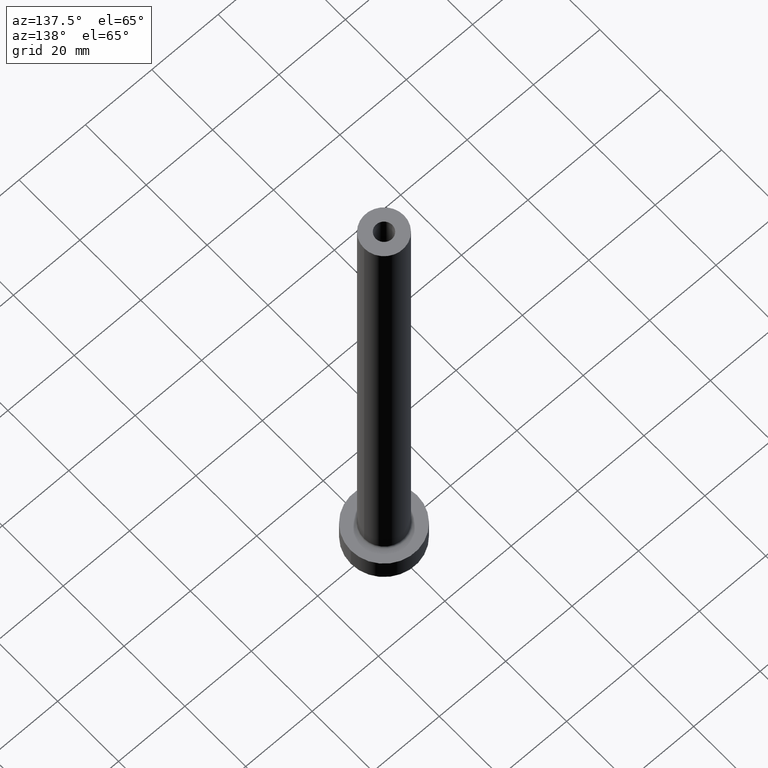
[diagram: clean part render]
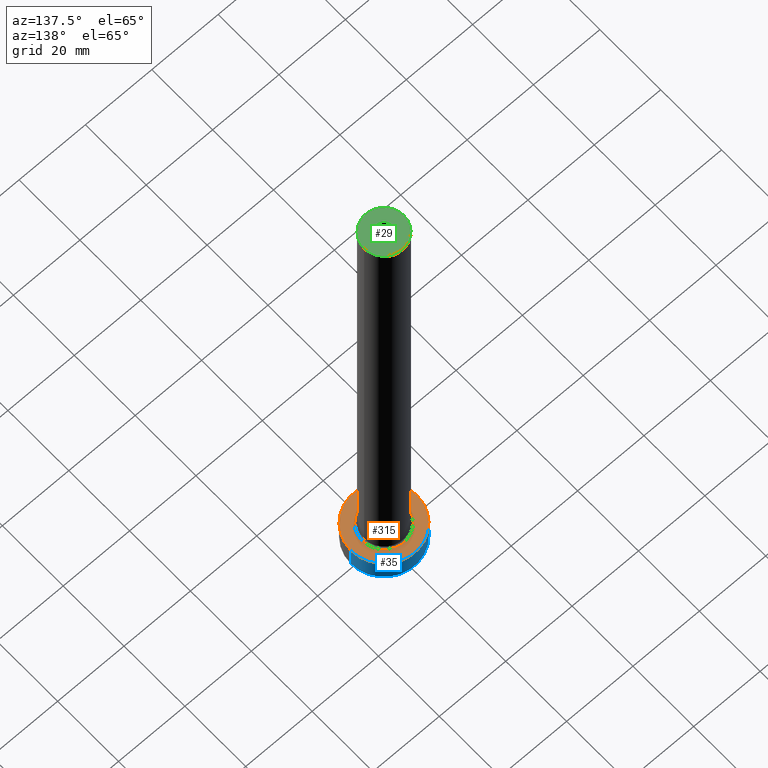
[diagram: same view with three faces highlighted in distinct colors, each labeled with its STEP entity id]
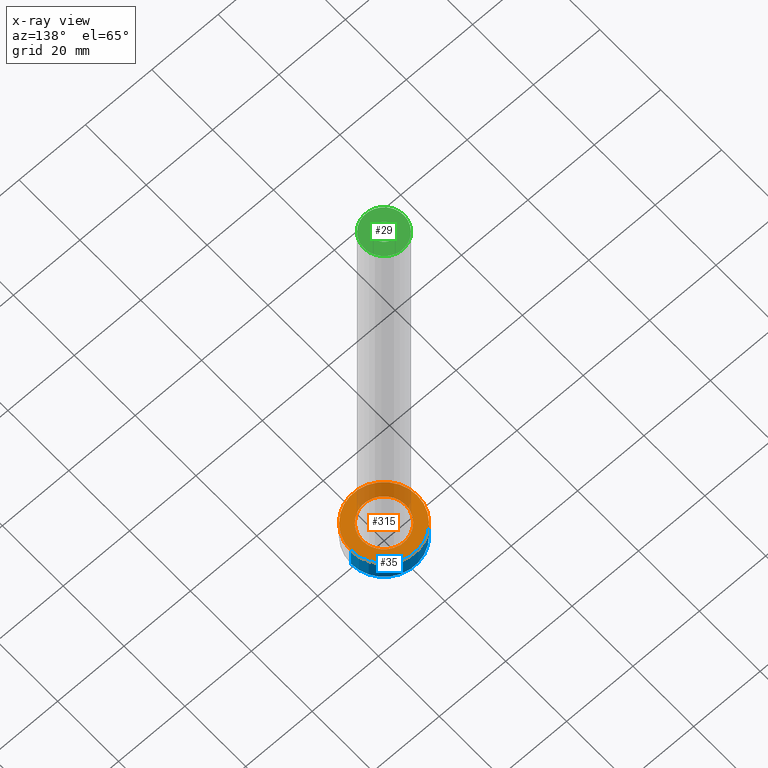
[diagram: x-ray of the same camera — body ghosted, the three highlighted faces saturated]
A machine part, auxiliary view with three faces highlighted in distinct colors.
The next image is the same camera in x-ray (body ghosted, the three faces saturated) — at least one of them is partly hidden behind the body in this view.
Their STEP definitions:

[orange] entity #315 — the highlighted planar face has unit normal (0, 0, 1).
#17 = DIRECTION ( 'NONE',  ( 0.000000000000000000, 0.000000000000000000, 1.000000000000000000 ) ) ;
#24 = EDGE_LOOP ( 'NONE', ( #304, #33 ) ) ;
#33 = ORIENTED_EDGE ( 'NONE', *, *, #111, .T. ) ;
#46 = CIRCLE ( 'NONE', #449, 6.500000000000000888 ) ;
#53 = CIRCLE ( 'NONE', #323, 10.00000000000000000 ) ;
#86 = VERTEX_POINT ( 'NONE', #276 ) ;
#91 = CARTESIAN_POINT ( 'NONE',  ( 0.000000000000000000, 0.000000000000000000, 7.000000000000000000 ) ) ;
#92 = ORIENTED_EDGE ( 'NONE', *, *, #221, .T. ) ;
#111 = EDGE_CURVE ( 'NONE', #194, #86, #359, .T. ) ;
#112 = FACE_OUTER_BOUND ( 'NONE', #408, .T. ) ;
#130 = CARTESIAN_POINT ( 'NONE',  ( 0.000000000000000000, 0.000000000000000000, 7.000000000000000000 ) ) ;
#179 = AXIS2_PLACEMENT_3D ( 'NONE', #195, #343, #451 ) ;
#194 = VERTEX_POINT ( 'NONE', #260 ) ;
#195 = CARTESIAN_POINT ( 'NONE',  ( 0.000000000000000000, 0.000000000000000000, 7.000000000000000000 ) ) ;
#217 = DIRECTION ( 'NONE',  ( 1.000000000000000000, 0.000000000000000000, 0.000000000000000000 ) ) ;
#221 = EDGE_CURVE ( 'NONE', #423, #441, #53, .T. ) ;
#230 = DIRECTION ( 'NONE',  ( 1.000000000000000000, 0.000000000000000000, 0.000000000000000000 ) ) ;
#252 = PLANE ( 'NONE',  #409 ) ;
#260 = CARTESIAN_POINT ( 'NONE',  ( -6.500000000000000888, 7.960204194457796463E-16, 7.000000000000002665 ) ) ;
#275 = DIRECTION ( 'NONE',  ( -0.000000000000000000, -0.000000000000000000, -1.000000000000000000 ) ) ;
#276 = CARTESIAN_POINT ( 'NONE',  ( 6.500000000000000888, 0.000000000000000000, 7.000000000000002665 ) ) ;
#279 = DIRECTION ( 'NONE',  ( -0.000000000000000000, -0.000000000000000000, -1.000000000000000000 ) ) ;
#284 = AXIS2_PLACEMENT_3D ( 'NONE', #416, #279, #379 ) ;
#297 = CARTESIAN_POINT ( 'NONE',  ( 0.000000000000000000, 0.000000000000000000, 7.000000000000000000 ) ) ;
#304 = ORIENTED_EDGE ( 'NONE', *, *, #358, .T. ) ;
#315 = ADVANCED_FACE ( 'NONE', ( #433, #112 ), #252, .T. ) ;
#323 = AXIS2_PLACEMENT_3D ( 'NONE', #297, #440, #217 ) ;
#337 = ORIENTED_EDGE ( 'NONE', *, *, #401, .T. ) ;
#343 = DIRECTION ( 'NONE',  ( 0.000000000000000000, 0.000000000000000000, 1.000000000000000000 ) ) ;
#358 = EDGE_CURVE ( 'NONE', #86, #194, #46, .T. ) ;
#359 = CIRCLE ( 'NONE', #284, 6.500000000000000888 ) ;
#370 = DIRECTION ( 'NONE',  ( 1.000000000000000000, 0.000000000000000000, -0.000000000000000000 ) ) ;
#378 = CARTESIAN_POINT ( 'NONE',  ( 10.00000000000000000, 1.224646799147353256E-15, 7.000000000000000000 ) ) ;
#379 = DIRECTION ( 'NONE',  ( 1.000000000000000000, 0.000000000000000000, 0.000000000000000000 ) ) ;
#387 = CIRCLE ( 'NONE', #179, 10.00000000000000000 ) ;
#401 = EDGE_CURVE ( 'NONE', #441, #423, #387, .T. ) ;
#408 = EDGE_LOOP ( 'NONE', ( #337, #92 ) ) ;
#409 = AXIS2_PLACEMENT_3D ( 'NONE', #130, #17, #370 ) ;
#412 = CARTESIAN_POINT ( 'NONE',  ( -10.00000000000000000, 0.000000000000000000, 7.000000000000000000 ) ) ;
#416 = CARTESIAN_POINT ( 'NONE',  ( 0.000000000000000000, 0.000000000000000000, 7.000000000000000000 ) ) ;
#423 = VERTEX_POINT ( 'NONE', #378 ) ;
#433 = FACE_BOUND ( 'NONE', #24, .T. ) ;
#440 = DIRECTION ( 'NONE',  ( 0.000000000000000000, 0.000000000000000000, 1.000000000000000000 ) ) ;
#441 = VERTEX_POINT ( 'NONE', #412 ) ;
#449 = AXIS2_PLACEMENT_3D ( 'NONE', #91, #275, #230 ) ;
#451 = DIRECTION ( 'NONE',  ( 1.000000000000000000, 0.000000000000000000, 0.000000000000000000 ) ) ;

[blue] entity #35 — the highlighted cylindrical surface (partial cylindrical patch) has radius 10 mm, axis along (-0, -0, -1).
#7 = DIRECTION ( 'NONE',  ( -0.000000000000000000, -0.000000000000000000, -1.000000000000000000 ) ) ;
#15 = VECTOR ( 'NONE', #71, 1000.000000000000000 ) ;
#35 = ADVANCED_FACE ( 'NONE', ( #283 ), #424, .T. ) ;
#36 = DIRECTION ( 'NONE',  ( -0.000000000000000000, -0.000000000000000000, -1.000000000000000000 ) ) ;
#53 = CIRCLE ( 'NONE', #323, 10.00000000000000000 ) ;
#61 = DIRECTION ( 'NONE',  ( 0.000000000000000000, 0.000000000000000000, 1.000000000000000000 ) ) ;
#66 = ORIENTED_EDGE ( 'NONE', *, *, #193, .T. ) ;
#68 = EDGE_CURVE ( 'NONE', #441, #376, #458, .T. ) ;
#71 = DIRECTION ( 'NONE',  ( -0.000000000000000000, -0.000000000000000000, -1.000000000000000000 ) ) ;
#77 = EDGE_CURVE ( 'NONE', #227, #376, #426, .T. ) ;
#133 = CARTESIAN_POINT ( 'NONE',  ( 0.000000000000000000, 0.000000000000000000, 7.000000000000000000 ) ) ;
#178 = LINE ( 'NONE', #361, #278 ) ;
#193 = EDGE_CURVE ( 'NONE', #423, #227, #178, .T. ) ;
#196 = ORIENTED_EDGE ( 'NONE', *, *, #221, .F. ) ;
#217 = DIRECTION ( 'NONE',  ( 1.000000000000000000, 0.000000000000000000, 0.000000000000000000 ) ) ;
#221 = EDGE_CURVE ( 'NONE', #423, #441, #53, .T. ) ;
#227 = VERTEX_POINT ( 'NONE', #396 ) ;
#231 = ORIENTED_EDGE ( 'NONE', *, *, #68, .F. ) ;
#256 = ORIENTED_EDGE ( 'NONE', *, *, #77, .T. ) ;
#270 = EDGE_LOOP ( 'NONE', ( #196, #66, #256, #231 ) ) ;
#278 = VECTOR ( 'NONE', #7, 1000.000000000000000 ) ;
#283 = FACE_OUTER_BOUND ( 'NONE', #270, .T. ) ;
#297 = CARTESIAN_POINT ( 'NONE',  ( 0.000000000000000000, 0.000000000000000000, 7.000000000000000000 ) ) ;
#309 = CARTESIAN_POINT ( 'NONE',  ( -10.00000000000000000, 0.000000000000000000, 0.000000000000000000 ) ) ;
#316 = DIRECTION ( 'NONE',  ( 1.000000000000000000, 0.000000000000000000, 0.000000000000000000 ) ) ;
#317 = DIRECTION ( 'NONE',  ( -1.000000000000000000, 0.000000000000000000, 0.000000000000000000 ) ) ;
#323 = AXIS2_PLACEMENT_3D ( 'NONE', #297, #440, #217 ) ;
#350 = CARTESIAN_POINT ( 'NONE',  ( 0.000000000000000000, 0.000000000000000000, 0.000000000000000000 ) ) ;
#361 = CARTESIAN_POINT ( 'NONE',  ( 10.00000000000000000, 1.224646799147353256E-15, 7.000000000000000000 ) ) ;
#376 = VERTEX_POINT ( 'NONE', #309 ) ;
#378 = CARTESIAN_POINT ( 'NONE',  ( 10.00000000000000000, 1.224646799147353256E-15, 7.000000000000000000 ) ) ;
#380 = AXIS2_PLACEMENT_3D ( 'NONE', #133, #36, #317 ) ;
#388 = CARTESIAN_POINT ( 'NONE',  ( -10.00000000000000000, 0.000000000000000000, 7.000000000000000000 ) ) ;
#392 = AXIS2_PLACEMENT_3D ( 'NONE', #350, #61, #316 ) ;
#396 = CARTESIAN_POINT ( 'NONE',  ( 10.00000000000000000, 1.224646799147353256E-15, 0.000000000000000000 ) ) ;
#412 = CARTESIAN_POINT ( 'NONE',  ( -10.00000000000000000, 0.000000000000000000, 7.000000000000000000 ) ) ;
#423 = VERTEX_POINT ( 'NONE', #378 ) ;
#424 = CYLINDRICAL_SURFACE ( 'NONE', #380, 10.00000000000000000 ) ;
#426 = CIRCLE ( 'NONE', #392, 10.00000000000000000 ) ;
#440 = DIRECTION ( 'NONE',  ( 0.000000000000000000, 0.000000000000000000, 1.000000000000000000 ) ) ;
#441 = VERTEX_POINT ( 'NONE', #412 ) ;
#458 = LINE ( 'NONE', #388, #15 ) ;

[green] entity #29 — the highlighted planar face has unit normal (0, 0, 1).
#1 = FACE_BOUND ( 'NONE', #262, .T. ) ;
#6 = VERTEX_POINT ( 'NONE', #418 ) ;
#8 = CARTESIAN_POINT ( 'NONE',  ( 0.000000000000000000, 0.000000000000000000, 160.0000000000000000 ) ) ;
#29 = ADVANCED_FACE ( 'NONE', ( #1, #241 ), #310, .T. ) ;
#54 = VERTEX_POINT ( 'NONE', #106 ) ;
#62 = EDGE_CURVE ( 'NONE', #171, #6, #319, .T. ) ;
#63 = AXIS2_PLACEMENT_3D ( 'NONE', #400, #404, #117 ) ;
#72 = CARTESIAN_POINT ( 'NONE',  ( 2.500000000000000000, 3.061616997868382648E-16, 160.0000000000000000 ) ) ;
#103 = CARTESIAN_POINT ( 'NONE',  ( 0.000000000000000000, 0.000000000000000000, 160.0000000000000000 ) ) ;
#106 = CARTESIAN_POINT ( 'NONE',  ( -6.000000000000000888, 0.000000000000000000, 160.0000000000000000 ) ) ;
#115 = ORIENTED_EDGE ( 'NONE', *, *, #151, .T. ) ;
#117 = DIRECTION ( 'NONE',  ( 1.000000000000000000, 0.000000000000000000, 0.000000000000000000 ) ) ;
#119 = ORIENTED_EDGE ( 'NONE', *, *, #62, .F. ) ;
#140 = AXIS2_PLACEMENT_3D ( 'NONE', #234, #336, #303 ) ;
#150 = ORIENTED_EDGE ( 'NONE', *, *, #177, .F. ) ;
#151 = EDGE_CURVE ( 'NONE', #54, #204, #245, .T. ) ;
#152 = CARTESIAN_POINT ( 'NONE',  ( 6.000000000000000888, 7.347880794884120722E-16, 160.0000000000000000 ) ) ;
#171 = VERTEX_POINT ( 'NONE', #72 ) ;
#177 = EDGE_CURVE ( 'NONE', #6, #171, #288, .T. ) ;
#204 = VERTEX_POINT ( 'NONE', #152 ) ;
#207 = DIRECTION ( 'NONE',  ( 1.000000000000000000, 0.000000000000000000, -0.000000000000000000 ) ) ;
#234 = CARTESIAN_POINT ( 'NONE',  ( 0.000000000000000000, 0.000000000000000000, 160.0000000000000000 ) ) ;
#241 = FACE_OUTER_BOUND ( 'NONE', #430, .T. ) ;
#245 = CIRCLE ( 'NONE', #419, 6.000000000000000888 ) ;
#246 = DIRECTION ( 'NONE',  ( 0.000000000000000000, 0.000000000000000000, 1.000000000000000000 ) ) ;
#262 = EDGE_LOOP ( 'NONE', ( #150, #119 ) ) ;
#288 = CIRCLE ( 'NONE', #63, 2.500000000000000000 ) ;
#289 = ORIENTED_EDGE ( 'NONE', *, *, #422, .T. ) ;
#295 = AXIS2_PLACEMENT_3D ( 'NONE', #421, #454, #207 ) ;
#303 = DIRECTION ( 'NONE',  ( 1.000000000000000000, 0.000000000000000000, 0.000000000000000000 ) ) ;
#310 = PLANE ( 'NONE',  #295 ) ;
#319 = CIRCLE ( 'NONE', #459, 2.500000000000000000 ) ;
#336 = DIRECTION ( 'NONE',  ( 0.000000000000000000, 0.000000000000000000, 1.000000000000000000 ) ) ;
#342 = CIRCLE ( 'NONE', #140, 6.000000000000000888 ) ;
#354 = DIRECTION ( 'NONE',  ( 1.000000000000000000, 0.000000000000000000, 0.000000000000000000 ) ) ;
#385 = DIRECTION ( 'NONE',  ( 1.000000000000000000, 0.000000000000000000, 0.000000000000000000 ) ) ;
#390 = DIRECTION ( 'NONE',  ( 0.000000000000000000, 0.000000000000000000, 1.000000000000000000 ) ) ;
#400 = CARTESIAN_POINT ( 'NONE',  ( 0.000000000000000000, 0.000000000000000000, 160.0000000000000000 ) ) ;
#404 = DIRECTION ( 'NONE',  ( 0.000000000000000000, 0.000000000000000000, 1.000000000000000000 ) ) ;
#418 = CARTESIAN_POINT ( 'NONE',  ( -2.500000000000000000, 0.000000000000000000, 160.0000000000000000 ) ) ;
#419 = AXIS2_PLACEMENT_3D ( 'NONE', #8, #390, #354 ) ;
#421 = CARTESIAN_POINT ( 'NONE',  ( 0.000000000000000000, 0.000000000000000000, 160.0000000000000000 ) ) ;
#422 = EDGE_CURVE ( 'NONE', #204, #54, #342, .T. ) ;
#430 = EDGE_LOOP ( 'NONE', ( #115, #289 ) ) ;
#454 = DIRECTION ( 'NONE',  ( 0.000000000000000000, 0.000000000000000000, 1.000000000000000000 ) ) ;
#459 = AXIS2_PLACEMENT_3D ( 'NONE', #103, #246, #385 ) ;